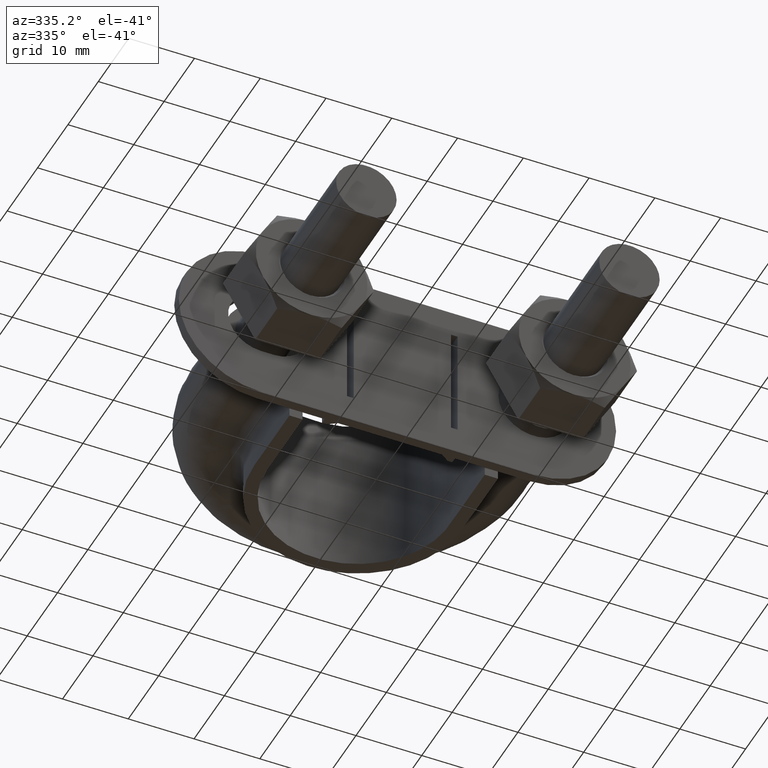
[diagram: clean part render]
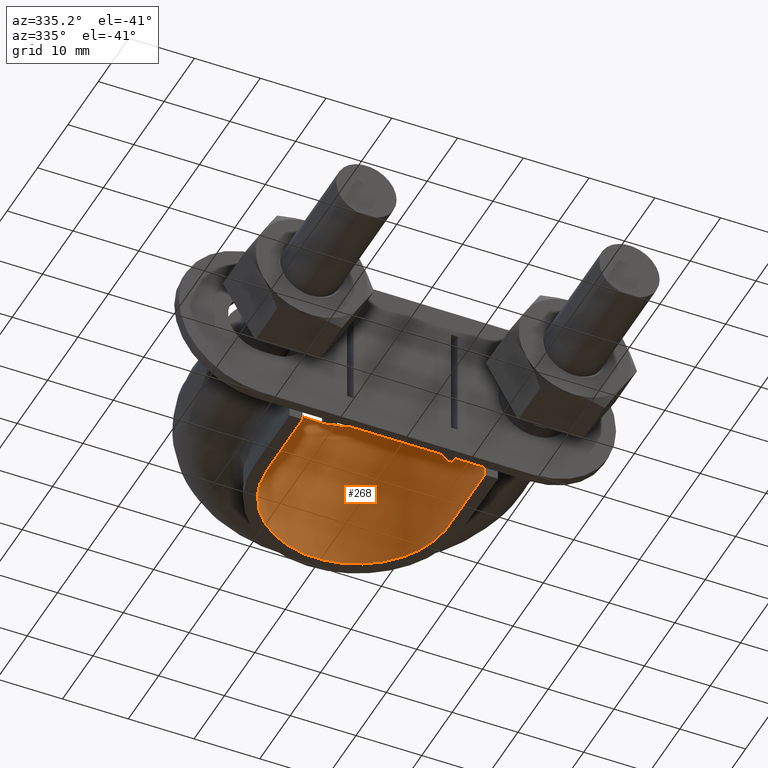
[diagram: same view with one face highlighted and labeled with its STEP entity id]
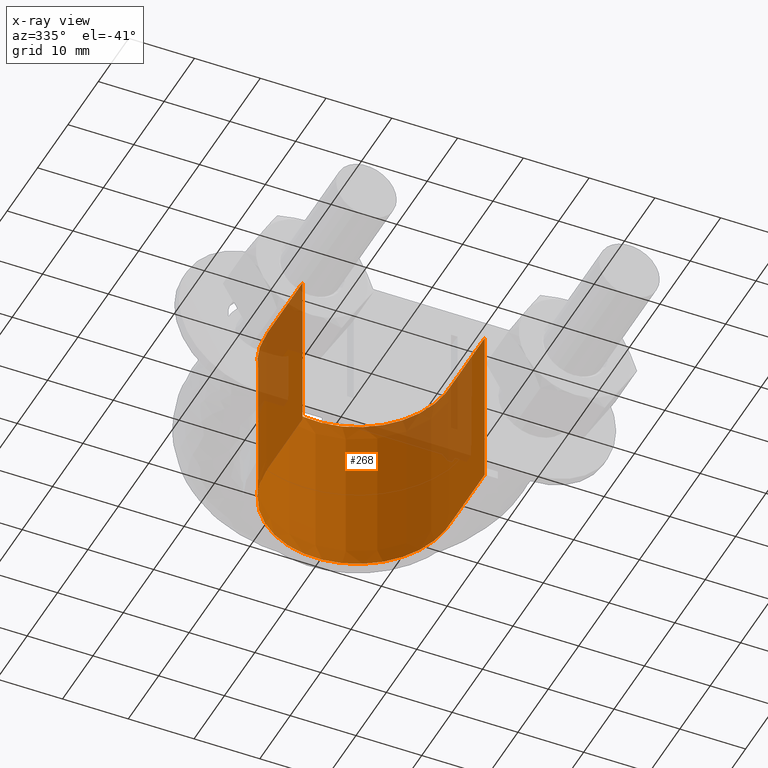
[diagram: x-ray of the same camera — body ghosted, the highlighted face saturated]
A machine part, auxiliary view. The second image highlights one B-rep face of the part: STEP entity #268.
The next image is the same camera in x-ray: the body ghosted, the highlighted face saturated — about 22% of this face is hidden behind the body in this view.
In plain terms, the highlighted face is a SurfaceOfExtrusion surface.
Its self-contained STEP definition (entity closure, byte-faithful):
#268 = ADVANCED_FACE( '', ( #370 ), #371, .T. );
#370 = FACE_OUTER_BOUND( '', #599, .T. );
#371 = SURFACE_OF_LINEAR_EXTRUSION( '', #600, #601 );
#599 = EDGE_LOOP( '', ( #1711, #1712, #1713, #1714 ) );
#600 = B_SPLINE_CURVE_WITH_KNOTS( '', 3, ( #1715, #1716, #1717, #1718, #1719, #1720, #1721, #1722, #1723, #1724, #1725, #1726, #1727, #1728, #1729, #1730, #1731, #1732 ), .UNSPECIFIED., .F., .F., ( 4, 3, 1, 1, 1, 1, 1, 1, 1, 1, 3, 4 ), ( 0.263975155279503, 1.00000000000000, 1.50000000000000, 1.75000000000000, 2.00000000000000, 3.00000000000000, 4.00000000000000, 5.00000000000000, 5.25000000000000, 5.50000000000000, 6.00000000000000, 6.73602484472050 ), .UNSPECIFIED. );
#601 = VECTOR( '', #1733, 1000.00000000000 );
#1711 = ORIENTED_EDGE( '', *, *, #2453, .F. );
#1712 = ORIENTED_EDGE( '', *, *, #2456, .T. );
#1713 = ORIENTED_EDGE( '', *, *, #2457, .T. );
#1714 = ORIENTED_EDGE( '', *, *, #2458, .F. );
#1715 = CARTESIAN_POINT( '', ( -13.8500000000000, 34.3000000000000, -59.0898515348929 ) );
#1716 = CARTESIAN_POINT( '', ( -13.8500000000000, 38.2500000000000, -59.0898515348929 ) );
#1717 = CARTESIAN_POINT( '', ( -13.8500000000000, 42.2000000000000, -59.0898515348929 ) );
#1718 = CARTESIAN_POINT( '', ( -13.8500000000000, 46.1500000000000, -59.0898515348929 ) );
#1719 = CARTESIAN_POINT( '', ( -13.8500000000000, 47.5764090913196, -59.0898515348929 ) );
#1720 = CARTESIAN_POINT( '', ( -13.4987711149041, 49.7652103300043, -59.0898515348929 ) );
#1721 = CARTESIAN_POINT( '', ( -12.3762577063388, 52.4805432618923, -59.0898515348929 ) );
#1722 = CARTESIAN_POINT( '', ( -10.1312776771716, 56.1665191788760, -59.0898515348929 ) );
#1723 = CARTESIAN_POINT( '', ( -4.56410324862350, 60.2237366283484, -59.0898515348929 ) );
#1724 = CARTESIAN_POINT( '', ( 4.56410324862353, 60.2237366283484, -59.0898515348929 ) );
#1725 = CARTESIAN_POINT( '', ( 10.1312776771716, 56.1665191788760, -59.0898515348929 ) );
#1726 = CARTESIAN_POINT( '', ( 12.3762577063388, 52.4805432618923, -59.0898515348929 ) );
#1727 = CARTESIAN_POINT( '', ( 13.4987711149041, 49.7652103300043, -59.0898515348929 ) );
#1728 = CARTESIAN_POINT( '', ( 13.8500000000000, 47.5764090913196, -59.0898515348929 ) );
#1729 = CARTESIAN_POINT( '', ( 13.8500000000000, 46.1500000000000, -59.0898515348929 ) );
#1730 = CARTESIAN_POINT( '', ( 13.8500000000000, 42.2000000000000, -59.0898515348929 ) );
#1731 = CARTESIAN_POINT( '', ( 13.8500000000000, 38.2500000000000, -59.0898515348929 ) );
#1732 = CARTESIAN_POINT( '', ( 13.8500000000000, 34.3000000000000, -59.0898515348929 ) );
#1733 = DIRECTION( '', ( 0.000000000000000, 0.000000000000000, 1.00000000000000 ) );
#2453 = EDGE_CURVE( '', #2668, #2670, #2671, .T. );
#2456 = EDGE_CURVE( '', #2668, #2675, #2676, .T. );
#2457 = EDGE_CURVE( '', #2675, #2677, #2678, .T. );
#2458 = EDGE_CURVE( '', #2670, #2677, #2679, .T. );
#2668 = VERTEX_POINT( '', #3037 );
#2670 = VERTEX_POINT( '', #3040 );
#2671 = LINE( '', #3041, #3042 );
#2675 = VERTEX_POINT( '', #3077 );
#2676 = B_SPLINE_CURVE_WITH_KNOTS( '', 3, ( #3078, #3079, #3080, #3081, #3082, #3083, #3084, #3085, #3086, #3087, #3088, #3089, #3090, #3091, #3092, #3093, #3094, #3095 ), .UNSPECIFIED., .F., .F., ( 4, 3, 1, 1, 1, 1, 1, 1, 1, 1, 3, 4 ), ( 0.263975155279503, 1.00000000000000, 1.50000000000000, 1.75000000000000, 2.00000000000000, 3.00000000000000, 4.00000000000000, 5.00000000000000, 5.25000000000000, 5.50000000000000, 6.00000000000000, 6.73602484472050 ), .UNSPECIFIED. );
#2677 = VERTEX_POINT( '', #3096 );
#2678 = LINE( '', #3097, #3098 );
#2679 = B_SPLINE_CURVE_WITH_KNOTS( '', 3, ( #3099, #3100, #3101, #3102, #3103, #3104, #3105, #3106, #3107, #3108, #3109, #3110, #3111, #3112, #3113, #3114, #3115, #3116 ), .UNSPECIFIED., .F., .F., ( 4, 3, 1, 1, 1, 1, 1, 1, 1, 1, 3, 4 ), ( 0.263975155279503, 1.00000000000000, 1.50000000000000, 1.75000000000000, 2.00000000000000, 3.00000000000000, 4.00000000000000, 5.00000000000000, 5.25000000000000, 5.50000000000000, 6.00000000000000, 6.73602484472050 ), .UNSPECIFIED. );
#3037 = CARTESIAN_POINT( '', ( -13.8500000000000, 34.3000000000000, -12.5000000000000 ) );
#3040 = CARTESIAN_POINT( '', ( -13.8500000000000, 34.3000000000000, 12.5000000000000 ) );
#3041 = CARTESIAN_POINT( '', ( -13.8500000000000, 34.3000000000000, -59.0898515348929 ) );
#3042 = VECTOR( '', #3818, 1000.00000000000 );
#3077 = CARTESIAN_POINT( '', ( 13.8500000000000, 34.3000000000000, -12.5000000000000 ) );
#3078 = CARTESIAN_POINT( '', ( -13.8500000000000, 34.3000000000000, -12.5000000000000 ) );
#3079 = CARTESIAN_POINT( '', ( -13.8500000000000, 38.2500000000000, -12.5000000000000 ) );
#3080 = CARTESIAN_POINT( '', ( -13.8500000000000, 42.2000000000000, -12.5000000000000 ) );
#3081 = CARTESIAN_POINT( '', ( -13.8500000000000, 46.1500000000000, -12.5000000000000 ) );
#3082 = CARTESIAN_POINT( '', ( -13.8500000000000, 47.5764090913196, -12.5000000000000 ) );
#3083 = CARTESIAN_POINT( '', ( -13.4987711149041, 49.7652103300043, -12.5000000000000 ) );
#3084 = CARTESIAN_POINT( '', ( -12.3762577063388, 52.4805432618923, -12.5000000000000 ) );
#3085 = CARTESIAN_POINT( '', ( -10.1312776771716, 56.1665191788760, -12.5000000000000 ) );
#3086 = CARTESIAN_POINT( '', ( -4.56410324862350, 60.2237366283484, -12.5000000000000 ) );
#3087 = CARTESIAN_POINT( '', ( 4.56410324862353, 60.2237366283484, -12.5000000000000 ) );
#3088 = CARTESIAN_POINT( '', ( 10.1312776771716, 56.1665191788760, -12.5000000000000 ) );
#3089 = CARTESIAN_POINT( '', ( 12.3762577063388, 52.4805432618923, -12.5000000000000 ) );
#3090 = CARTESIAN_POINT( '', ( 13.4987711149041, 49.7652103300043, -12.5000000000000 ) );
#3091 = CARTESIAN_POINT( '', ( 13.8500000000000, 47.5764090913196, -12.5000000000000 ) );
#3092 = CARTESIAN_POINT( '', ( 13.8500000000000, 46.1500000000000, -12.5000000000000 ) );
#3093 = CARTESIAN_POINT( '', ( 13.8500000000000, 42.2000000000000, -12.5000000000000 ) );
#3094 = CARTESIAN_POINT( '', ( 13.8500000000000, 38.2500000000000, -12.5000000000000 ) );
#3095 = CARTESIAN_POINT( '', ( 13.8500000000000, 34.3000000000000, -12.5000000000000 ) );
#3096 = CARTESIAN_POINT( '', ( 13.8500000000000, 34.3000000000000, 12.5000000000000 ) );
#3097 = CARTESIAN_POINT( '', ( 13.8500000000000, 34.3000000000000, -59.0898515348929 ) );
#3098 = VECTOR( '', #3820, 1000.00000000000 );
#3099 = CARTESIAN_POINT( '', ( -13.8500000000000, 34.3000000000000, 12.5000000000000 ) );
#3100 = CARTESIAN_POINT( '', ( -13.8500000000000, 38.2500000000000, 12.5000000000000 ) );
#3101 = CARTESIAN_POINT( '', ( -13.8500000000000, 42.2000000000000, 12.5000000000000 ) );
#3102 = CARTESIAN_POINT( '', ( -13.8500000000000, 46.1500000000000, 12.5000000000000 ) );
#3103 = CARTESIAN_POINT( '', ( -13.8500000000000, 47.5764090913196, 12.5000000000000 ) );
#3104 = CARTESIAN_POINT( '', ( -13.4987711149041, 49.7652103300043, 12.5000000000000 ) );
#3105 = CARTESIAN_POINT( '', ( -12.3762577063388, 52.4805432618923, 12.5000000000000 ) );
#3106 = CARTESIAN_POINT( '', ( -10.1312776771716, 56.1665191788760, 12.5000000000000 ) );
#3107 = CARTESIAN_POINT( '', ( -4.56410324862350, 60.2237366283484, 12.5000000000000 ) );
#3108 = CARTESIAN_POINT( '', ( 4.56410324862353, 60.2237366283484, 12.5000000000000 ) );
#3109 = CARTESIAN_POINT( '', ( 10.1312776771716, 56.1665191788760, 12.5000000000000 ) );
#3110 = CARTESIAN_POINT( '', ( 12.3762577063388, 52.4805432618923, 12.5000000000000 ) );
#3111 = CARTESIAN_POINT( '', ( 13.4987711149041, 49.7652103300043, 12.5000000000000 ) );
#3112 = CARTESIAN_POINT( '', ( 13.8500000000000, 47.5764090913196, 12.5000000000000 ) );
#3113 = CARTESIAN_POINT( '', ( 13.8500000000000, 46.1500000000000, 12.5000000000000 ) );
#3114 = CARTESIAN_POINT( '', ( 13.8500000000000, 42.2000000000000, 12.5000000000000 ) );
#3115 = CARTESIAN_POINT( '', ( 13.8500000000000, 38.2500000000000, 12.5000000000000 ) );
#3116 = CARTESIAN_POINT( '', ( 13.8500000000000, 34.3000000000000, 12.5000000000000 ) );
#3818 = DIRECTION( '', ( 0.000000000000000, 0.000000000000000, 1.00000000000000 ) );
#3820 = DIRECTION( '', ( 0.000000000000000, 0.000000000000000, 1.00000000000000 ) );